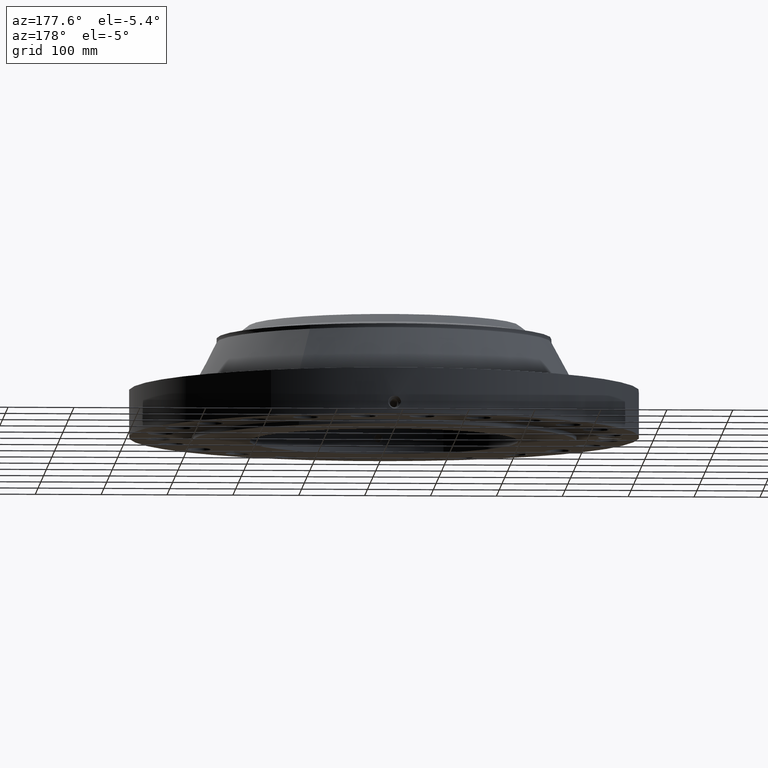
[diagram: clean part render]
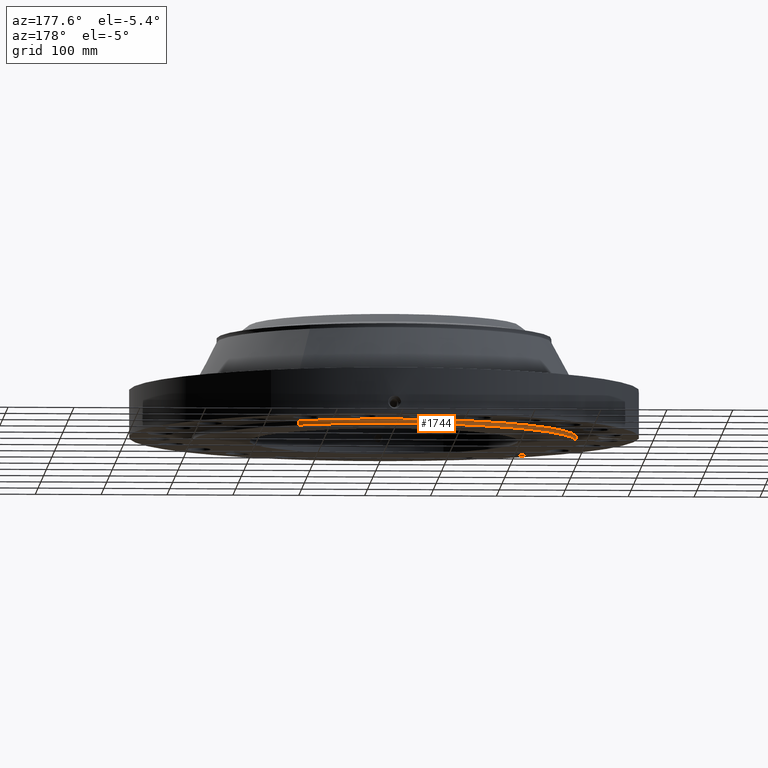
[diagram: same view with one face highlighted and labeled with its STEP entity id]
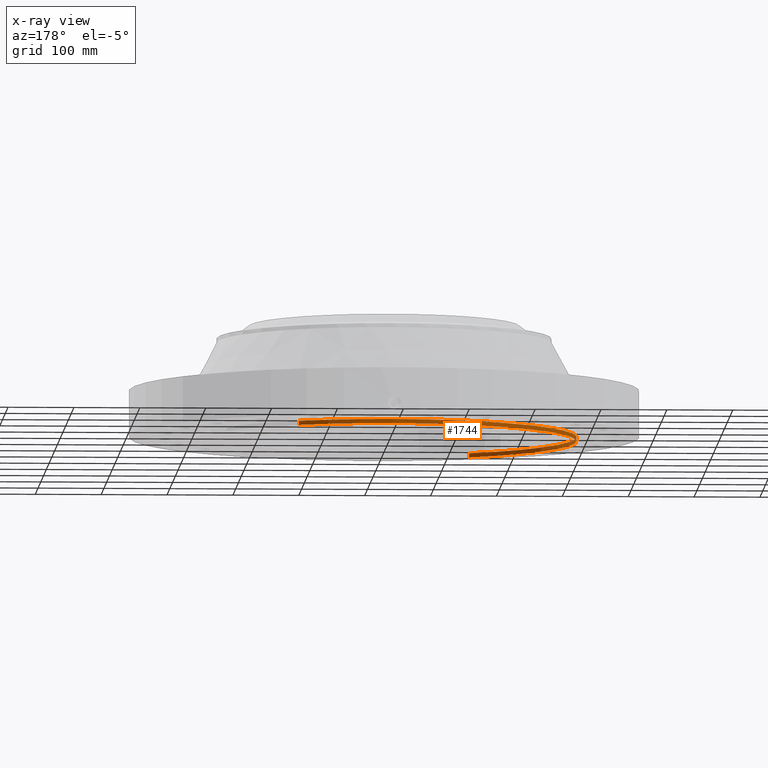
[diagram: x-ray of the same camera — body ghosted, the highlighted face saturated]
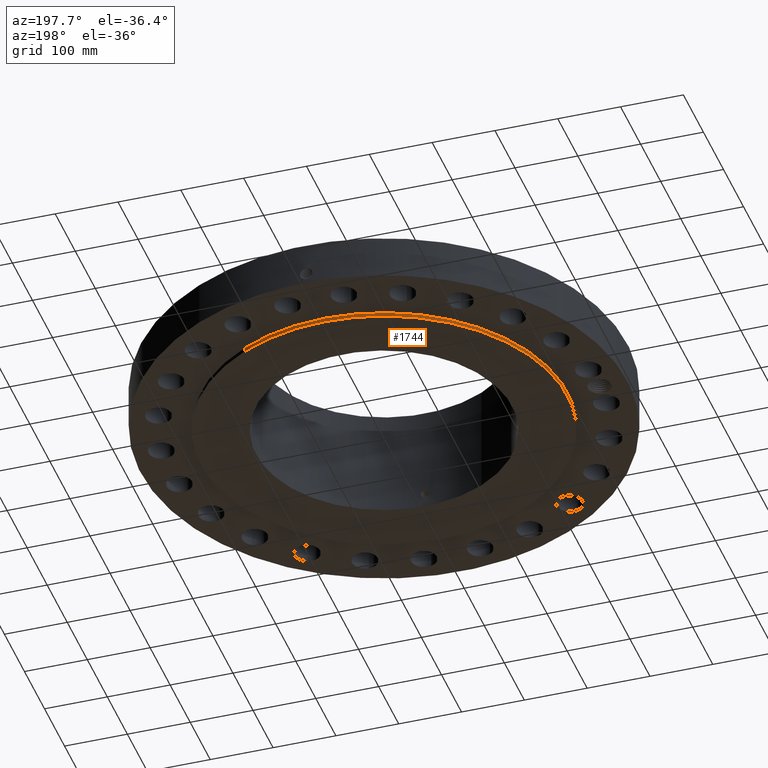
[diagram: same view with one face highlighted and labeled with its STEP entity id]
A machine part, auxiliary view. The second image highlights one B-rep face of the part: STEP entity #1744.
The next image is the same camera in x-ray: the body ghosted, the highlighted face saturated — about 0% of this face is hidden behind the body in this view.
A second angle (auxiliary view) of the same face is appended — the face is thin or edge-on in the first view.
In plain terms, the highlighted cylindrical surface (partial cylindrical patch) has radius 292.1 mm, axis along (0, 0, -1).
Its self-contained STEP definition (entity closure, byte-faithful):
#262=AXIS2_PLACEMENT_3D('Circle Axis2P3D',#260,#261,$) ;
#1705=AXIS2_PLACEMENT_3D('Cylinder Axis2P3D',#1702,#1703,#1704) ;
#1735=AXIS2_PLACEMENT_3D('Circle Axis2P3D',#1733,#1734,$) ;
#255=CARTESIAN_POINT('Vertex',(5.51339369397,10.0921994618,0.250000000001)) ;
#257=CARTESIAN_POINT('Vertex',(-5.51339369397,-10.0921994618,0.250000000001)) ;
#260=CARTESIAN_POINT('Axis2P3D Location',(0.,0.,0.250000000001)) ;
#1702=CARTESIAN_POINT('Axis2P3D Location',(0.,0.,3.43500000001)) ;
#1711=CARTESIAN_POINT('Vertex',(5.51339369397,10.0921994618,1.1189649382E-015)) ;
#1713=CARTESIAN_POINT('Vertex',(-5.51339369397,-10.0921994618,1.1189649382E-015)) ;
#1716=CARTESIAN_POINT('Line Origine',(5.51339369397,10.0921994618,0.125000000001)) ;
#1721=CARTESIAN_POINT('Line Origine',(-5.51339369397,-10.0921994618,0.125000000001)) ;
#1733=CARTESIAN_POINT('Axis2P3D Location',(0.,0.,1.1189649382E-015)) ;
#261=DIRECTION('Axis2P3D Direction',(0.,0.,-0.0393700787402)) ;
#1703=DIRECTION('Axis2P3D Direction',(0.,0.,-0.0393700787402)) ;
#1704=DIRECTION('Axis2P3D XDirection',(-0.0188750212049,-0.0345504945626,0.)) ;
#1717=DIRECTION('Vector Direction',(0.,0.,-0.0393700787402)) ;
#1722=DIRECTION('Vector Direction',(0.,0.,-0.0393700787402)) ;
#1734=DIRECTION('Axis2P3D Direction',(0.,0.,-0.0393700787402)) ;
#1718=VECTOR('Line Direction',#1717,0.0393700787402) ;
#1723=VECTOR('Line Direction',#1722,0.0393700787402) ;
#1739=ORIENTED_EDGE('',*,*,#1737,.F.) ;
#1740=ORIENTED_EDGE('',*,*,#1725,.T.) ;
#1741=ORIENTED_EDGE('',*,*,#264,.T.) ;
#1742=ORIENTED_EDGE('',*,*,#1720,.F.) ;
#1744=ADVANCED_FACE('PartBody',(#1743),#1706,.T.) ;
#263=CIRCLE('generated circle',#262,11.5) ;
#1736=CIRCLE('generated circle',#1735,11.5) ;
#1706=CYLINDRICAL_SURFACE('generated cylinder',#1705,11.5) ;
#264=EDGE_CURVE('',#258,#256,#263,.T.) ;
#1720=EDGE_CURVE('',#1712,#256,#1719,.F.) ;
#1725=EDGE_CURVE('',#1714,#258,#1724,.F.) ;
#1737=EDGE_CURVE('',#1714,#1712,#1736,.T.) ;
#1738=EDGE_LOOP('',(#1739,#1740,#1741,#1742)) ;
#1743=FACE_OUTER_BOUND('',#1738,.T.) ;
#1719=LINE('Line',#1716,#1718) ;
#1724=LINE('Line',#1721,#1723) ;
#256=VERTEX_POINT('',#255) ;
#258=VERTEX_POINT('',#257) ;
#1712=VERTEX_POINT('',#1711) ;
#1714=VERTEX_POINT('',#1713) ;